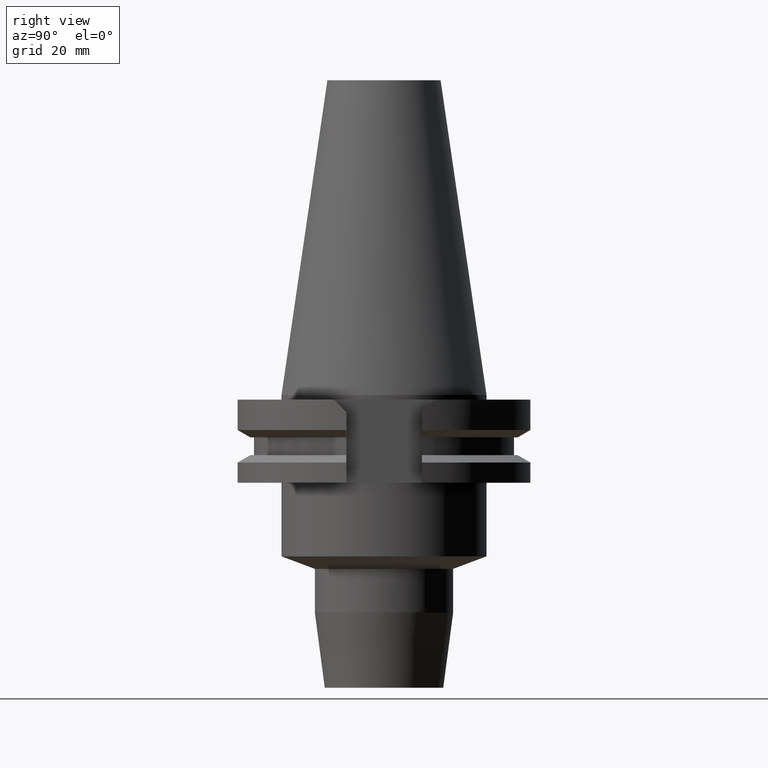
[diagram: clean part render]
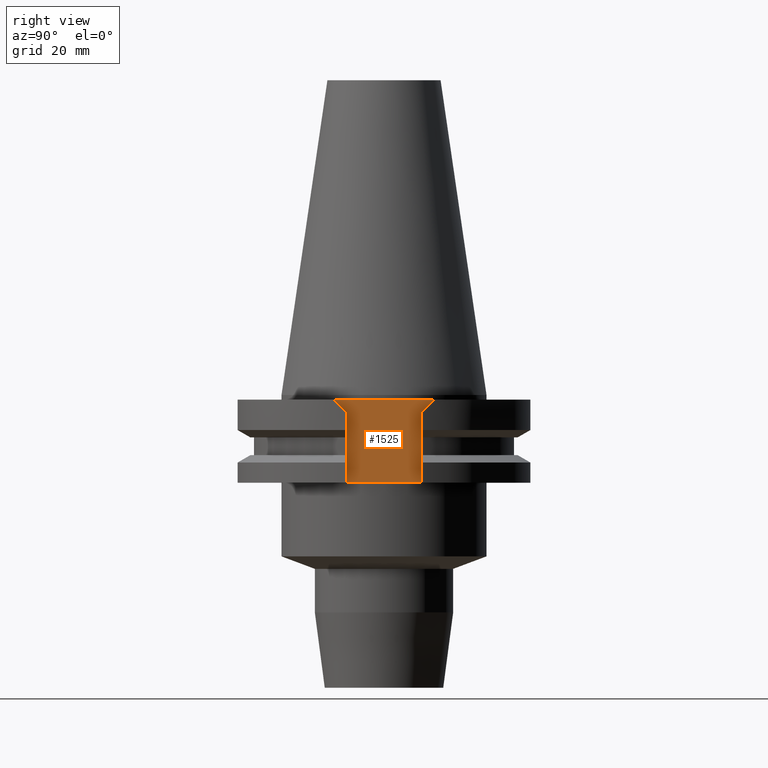
[diagram: same view with one face highlighted and labeled with its STEP entity id]
A machine part, right view. The second image highlights one B-rep face of the part: STEP entity #1525.
In plain terms, the highlighted planar face has unit normal (1, 0, 0).
Its self-contained STEP definition (entity closure, byte-faithful):
#62=DIRECTION('',(0.E0,-1.E0,0.E0));
#63=VECTOR('',#62,2.178E1);
#64=CARTESIAN_POINT('',(2.257E1,1.089E1,-1.E0));
#65=LINE('',#64,#63);
#131=DIRECTION('',(0.E0,-1.E0,0.E0));
#132=VECTOR('',#131,1.638E1);
#133=CARTESIAN_POINT('',(2.257E1,8.19E0,-1.905E1));
#134=LINE('',#133,#132);
#138=DIRECTION('',(0.E0,0.E0,1.E0));
#139=VECTOR('',#138,1.535E1);
#140=CARTESIAN_POINT('',(2.257E1,-8.19E0,-1.905E1));
#141=LINE('',#140,#139);
#145=DIRECTION('',(0.E0,-7.071067811865E-1,7.071067811865E-1));
#146=VECTOR('',#145,3.818376618407E0);
#147=CARTESIAN_POINT('',(2.257E1,-8.19E0,-3.7E0));
#148=LINE('',#147,#146);
#152=DIRECTION('',(0.E0,-7.071067811865E-1,-7.071067811865E-1));
#153=VECTOR('',#152,3.818376618407E0);
#154=CARTESIAN_POINT('',(2.257E1,1.089E1,-1.E0));
#155=LINE('',#154,#153);
#159=DIRECTION('',(0.E0,0.E0,-1.E0));
#160=VECTOR('',#159,1.535E1);
#161=CARTESIAN_POINT('',(2.257E1,8.19E0,-3.7E0));
#162=LINE('',#161,#160);
#1224=CARTESIAN_POINT('',(2.257E1,1.089E1,-1.E0));
#1225=CARTESIAN_POINT('',(2.257E1,-1.089E1,-1.E0));
#1226=VERTEX_POINT('',#1224);
#1227=VERTEX_POINT('',#1225);
#1244=CARTESIAN_POINT('',(2.257E1,8.19E0,-1.905E1));
#1245=CARTESIAN_POINT('',(2.257E1,-8.19E0,-1.905E1));
#1246=VERTEX_POINT('',#1244);
#1247=VERTEX_POINT('',#1245);
#1248=CARTESIAN_POINT('',(2.257E1,-8.19E0,-3.7E0));
#1249=VERTEX_POINT('',#1248);
#1250=CARTESIAN_POINT('',(2.257E1,8.19E0,-3.7E0));
#1251=VERTEX_POINT('',#1250);
#1507=CARTESIAN_POINT('',(2.257E1,0.E0,0.E0));
#1508=DIRECTION('',(1.E0,0.E0,0.E0));
#1509=DIRECTION('',(0.E0,0.E0,-1.E0));
#1510=AXIS2_PLACEMENT_3D('',#1507,#1508,#1509);
#1511=PLANE('',#1510);
#1513=ORIENTED_EDGE('',*,*,#1512,.T.);
#1515=ORIENTED_EDGE('',*,*,#1514,.T.);
#1517=ORIENTED_EDGE('',*,*,#1516,.T.);
#1518=ORIENTED_EDGE('',*,*,#1480,.F.);
#1520=ORIENTED_EDGE('',*,*,#1519,.T.);
#1522=ORIENTED_EDGE('',*,*,#1521,.T.);
#1523=EDGE_LOOP('',(#1513,#1515,#1517,#1518,#1520,#1522));
#1524=FACE_OUTER_BOUND('',#1523,.F.);
#1480=EDGE_CURVE('',#1226,#1227,#65,.T.);
#1512=EDGE_CURVE('',#1246,#1247,#134,.T.);
#1514=EDGE_CURVE('',#1247,#1249,#141,.T.);
#1516=EDGE_CURVE('',#1249,#1227,#148,.T.);
#1519=EDGE_CURVE('',#1226,#1251,#155,.T.);
#1521=EDGE_CURVE('',#1251,#1246,#162,.T.);
#1525=ADVANCED_FACE('',(#1524),#1511,.T.);